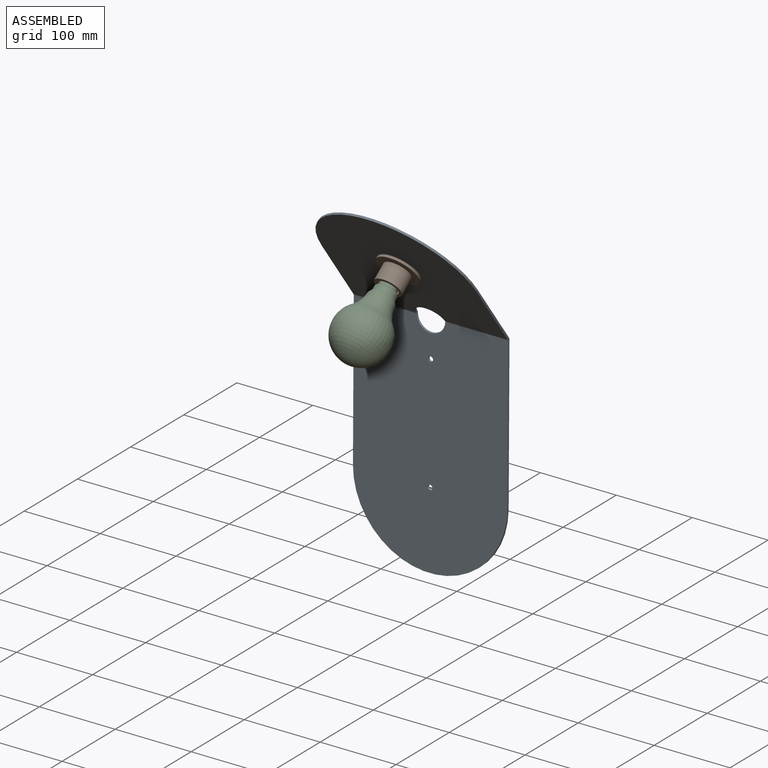
[diagram: assembled view]
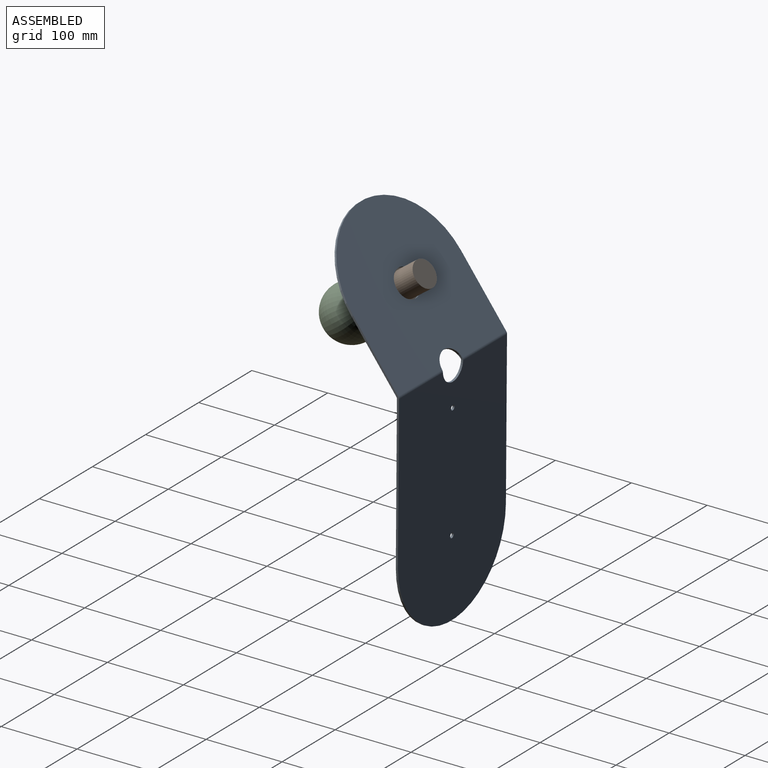
[diagram: assembled view, second angle]
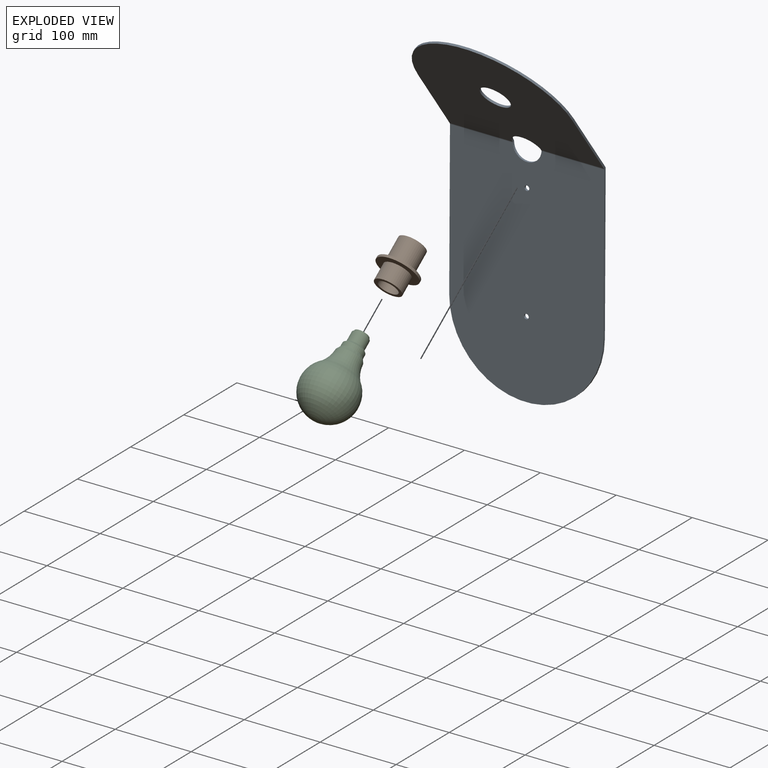
[diagram: exploded view]
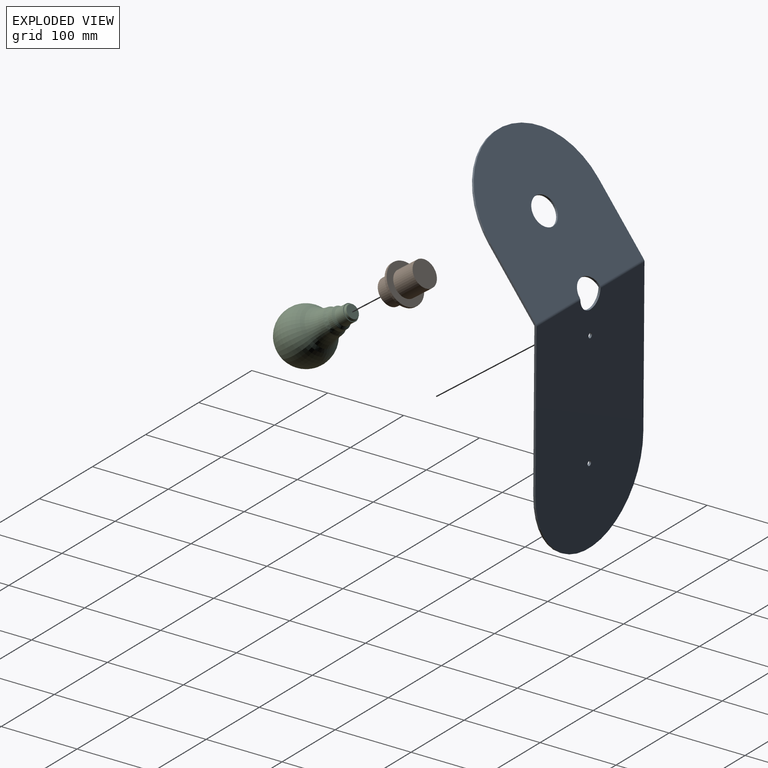
[diagram: exploded view, second angle]
ASSEMBLY  parts=3 mates=3
PART A: 23 faces, bbox 203.2x123.3x468 mm
  f0: plane 201.52x4.25mm, normal (-1,0,0), area 559.8mm2, adj f1,f6,f7,f15
  f1: cylinder r=101.6mm len=203.2mm, axis (0,-1,0.01), area 886.7mm2, adj f0,f2,f6,f7
  f2: plane 201.52x4.25mm, normal (1,0,0), area 559.8mm2, adj f1,f6,f7,f19
  f3: cylinder r=3.17mm len=6.37mm, axis (0,-1,0.01), area 55.4mm2, adj f6,f7
  f4: cylinder r=3.17mm len=6.37mm, axis (0,-1,0.01), area 55.4mm2, adj f6,f7
  f5: cylinder r=19.05mm len=38.03mm, axis (0,-1,0.01), area 159.9mm2, adj f6,f7,f16,f20
  f6: plane 303.1x203.2mm, normal (0,-1,0.01), area 56570.7mm2, adj f0,f1,f2,f3,f4,f5,f17,f21
  f7: plane 303.1x203.2mm, normal (0,1,-0.01), area 56570.7mm2, adj f0,f1,f2,f3,f4,f5,f18,f22
  f8: plane 81.88x61.77mm, normal (1,0,0), area 277.6mm2, adj f9,f13,f14,f19
  f9: cylinder r=101.6mm len=203.2mm, axis (0,-0.8,-0.6), area 886.7mm2, adj f8,f10,f13,f14
  f10: plane 81.88x61.77mm, normal (-1,0,0), area 277.6mm2, adj f9,f13,f14,f15
  f11: cylinder r=19.05mm len=38.1mm, axis (0,-0.8,-0.6), area 332.5mm2, adj f13,f14
  f12: cylinder r=19.05mm len=38.03mm, axis (0,-0.8,-0.6), area 159.9mm2, adj f13,f14,f16,f20
  f13: plane 203.2x161.81mm, normal (0,-0.8,-0.6), area 34848.8mm2, adj f8,f9,f10,f11,f12,f17,f21
  f14: plane 203.2x161.81mm, normal (0,0.8,0.6), area 34848.8mm2, adj f8,f9,f10,f11,f12,f18,f22
  f15: plane 3.23x3.06mm, normal (-1,0,0), area 6.6mm2, adj f0,f10,f17,f18
  f16: bspline ~3.23x3.06mm, area 6.6mm2, adj f5,f12,f17,f18
  f17: cylinder r=2.29mm len=82.58mm, axis (1,0,0), area 121.9mm2, adj f6,f13,f15,f16
  f18: cylinder r=5.06mm len=82.58mm, axis (1,0,0), area 270.1mm2, adj f7,f14,f15,f16
  f19: plane 3.23x3.06mm, normal (1,0,0), area 6.6mm2, adj f2,f8,f21,f22
  f20: bspline ~3.23x3.06mm, area 6.6mm2, adj f5,f12,f21,f22
  f21: cylinder r=2.29mm len=82.58mm, axis (1,0,0), area 121.9mm2, adj f6,f13,f19,f20
  f22: cylinder r=5.06mm len=82.58mm, axis (1,0,0), area 270.1mm2, adj f7,f14,f19,f20
PART B: 9 faces, bbox 54x54x57.2 mm
  f0: cylinder r=17.46mm len=34.93mm, axis (0,0,-1), area 3483.6mm2, adj f1,f3
  f1: plane 34.93x34.93mm, normal (0,0,-1), area 958mm2, adj f0
  f2: plane 53.98x53.98mm, normal (0,0,1), area 1330.1mm2, adj f4,f5
  f3: plane 53.98x53.98mm, normal (0,0,-1), area 1330.1mm2, adj f0,f4
  f4: cylinder r=26.99mm len=53.98mm, axis (0,0,-1), area 538.4mm2, adj f2,f3
  f5: cylinder r=17.46mm len=34.93mm, axis (0,0,-1), area 2438.5mm2, adj f2,f6
  f6: plane 34.93x34.93mm, normal (0,0,1), area 435.6mm2, adj f5,f7
  f7: cylinder r=12.9mm len=25.79mm, axis (0,0,1), area 1800.8mm2, adj f6,f8
  f8: plane 25.79x25.79mm, normal (0,0,1), area 522.4mm2, adj f7
PART C: 16 faces, bbox 71.4x71.4x112 mm
  f0: torus R=54.7mm, axis (0,0,1), area 2760.8mm2, adj f9,f15
  f1: cone r=17mm half-angle=31deg, axis (0,0,1), area 516.6mm2, adj f9,f10
  f2: cylinder r=14mm len=28mm, axis (0,0,1), area 467mm2, adj f10,f11
  f3: cone r=14mm half-angle=45deg, axis (0,0,1), area 268.2mm2, adj f11,f12
  f4: cylinder r=11mm len=22mm, axis (0,0,1), area 869.9mm2, adj f5,f12
  f5: plane 22x22mm, normal (0,0,-1), area 33.8mm2, adj f4,f13
  f6: cylinder r=9.5mm len=19mm, axis (0,0,1), area 59.7mm2, adj f13,f14
  f7: plane 17x17mm, normal (0,0,-1), area 227mm2, adj f14
  f8: torus R=0.43mm, axis (0,0,1), area 13725.8mm2, adj f15
  f9: torus R=16.01mm, axis (0,0,-1), area 52.3mm2, adj f0,f1
  f10: torus R=15mm, axis (0,0,1), area 47.7mm2, adj f1,f2
  f11: torus R=13mm, axis (0,0,-1), area 68.6mm2, adj f2,f3
  f12: torus R=12mm, axis (0,0,1), area 54.8mm2, adj f3,f4
  f13: torus R=10.5mm, axis (0,0,1), area 97.3mm2, adj f5,f6
  f14: torus R=8.5mm, axis (0,0,1), area 90.2mm2, adj f6,f7
  f15: torus R=25.25mm, axis (0,0,1), area 27.1mm2, adj f0,f8
PLACE A t=(-136.47,-56.33,35.93)mm
PLACE B rot(axis=(1,0,0),126.6deg) t=(-34.87,-76.36,10.45)mm
PLACE C rot(axis=(1,0,0),126.6deg) t=(-34.87,-155.89,-48.57)mm
MATE planar A.f13 <-> B.f4  axis (0,-0.8,-0.6) through (-34.87,-97.3,-14.61)mm
MATE slider C.f1 <-> B.f7  axis (0,-0.8,-0.6) through (-34.87,-113.33,-16.99)mm
MATE slider A.f9 <-> B.f0  axis (0,0.8,0.6) through (-34.87,-99.62,-6.81)mm
